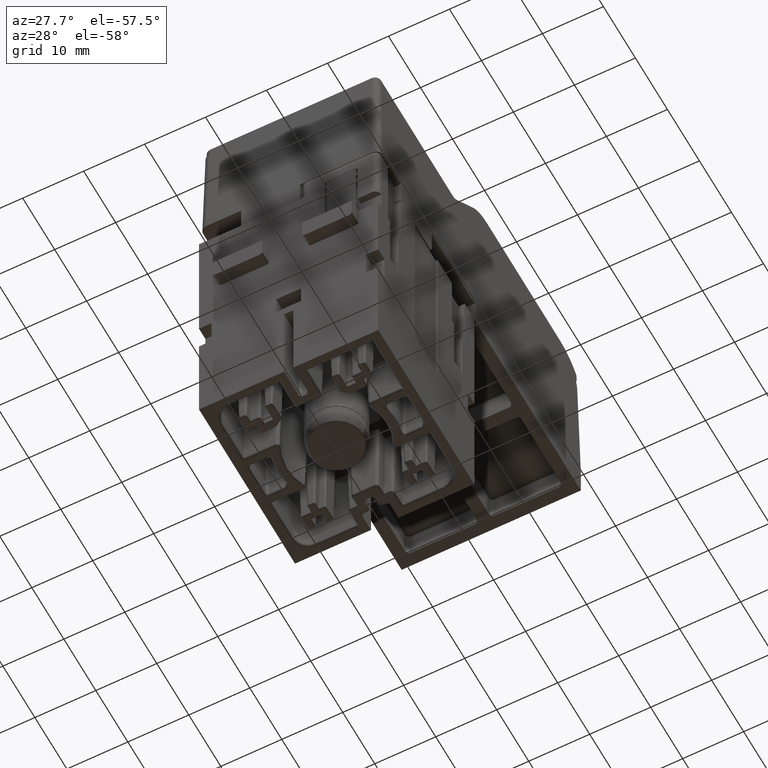
[diagram: clean part render]
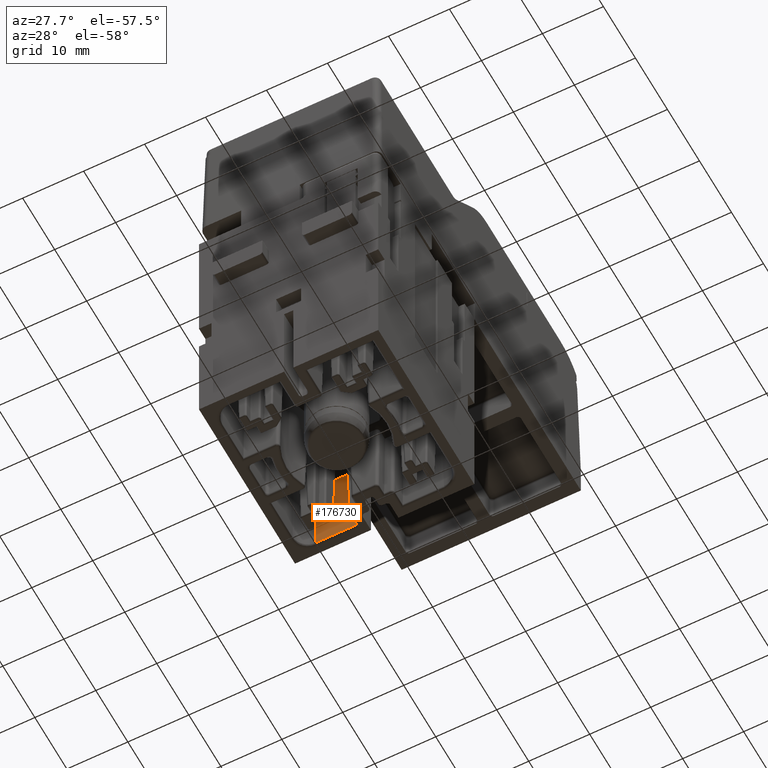
[diagram: same view with one face highlighted and labeled with its STEP entity id]
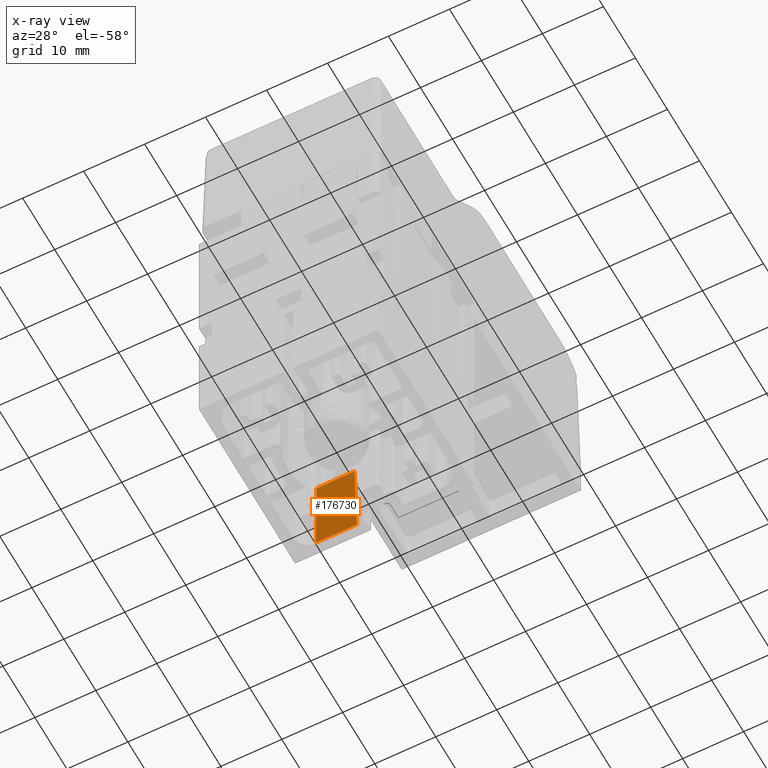
[diagram: x-ray of the same camera — body ghosted, the highlighted face saturated]
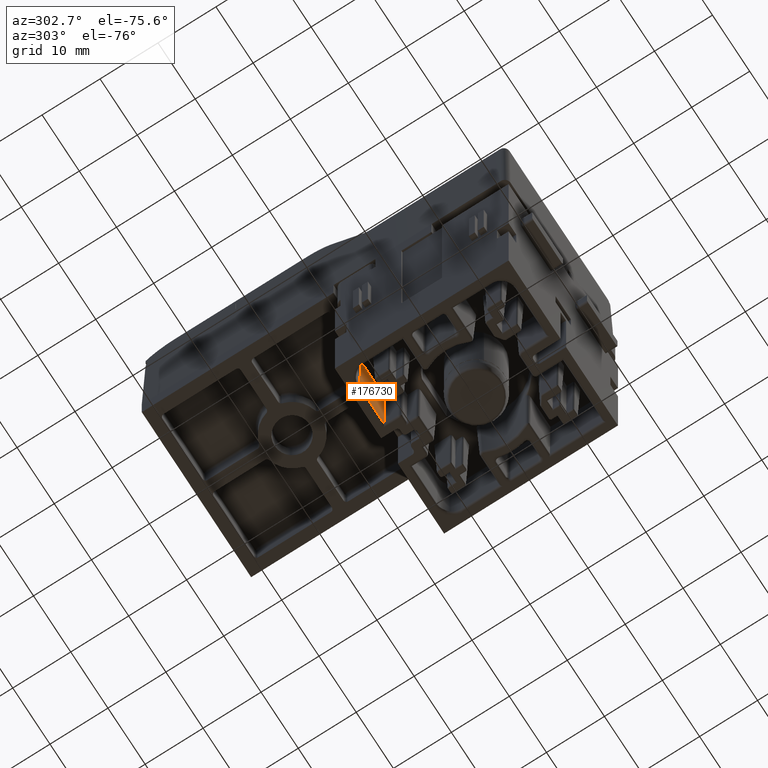
[diagram: same view with one face highlighted and labeled with its STEP entity id]
A machine part, auxiliary view. The second image highlights one B-rep face of the part: STEP entity #176730.
The next image is the same camera in x-ray: the body ghosted, the highlighted face saturated — about 0% of this face is hidden behind the body in this view.
A second angle (auxiliary view) of the same face is appended — the face is thin or edge-on in the first view.
In plain terms, the highlighted planar face has unit normal (0, 0.9998, 0.0175).
Its self-contained STEP definition (entity closure, byte-faithful):
#142210=CARTESIAN_POINT('',(51.8461300005344,44.2484567967819,
-3.50198576157503));
#142220=VERTEX_POINT('',#142210);
#142670=CARTESIAN_POINT('',(27.154278547699,44.2484567967817,
-3.50198576157505));
#142680=DIRECTION('',(-1.,-7.67670264259618E-15,-7.69482549007851E-16));
#142690=VECTOR('',#142680,1.);
#142700=LINE('',#142670,#142690);
#142710=CARTESIAN_POINT('',(45.0997207615765,44.2484567967818,
-3.50198576157504));
#142720=VERTEX_POINT('',#142710);
#142730=EDGE_CURVE('',#142220,#142720,#142700,.T.);
#151750=CARTESIAN_POINT('',(27.1542785476989,58.4571830000003,
-3.74999999999982));
#151760=DIRECTION('',(-1.,-7.67670264259618E-15,-7.69482549007851E-16));
#151770=VECTOR('',#151760,1.);
#151780=LINE('',#151750,#151770);
#152670=CARTESIAN_POINT('',(45.3477350000008,58.4571830000005,
-3.74999999999981));
#152680=VERTEX_POINT('',#152670);
#152710=CARTESIAN_POINT('',(51.5981157621099,58.4571830000005,
-3.74999999999981));
#152720=VERTEX_POINT('',#152710);
#152730=EDGE_CURVE('',#152720,#152680,#151780,.T.);
#176520=CARTESIAN_POINT('',(27.1542785476989,58.4571830000003,
-3.74999999999982));
#176530=DIRECTION('',(-9.03342287705496E-16,0.0174524064373062,
0.999847695156391));
#176540=DIRECTION('',(7.66210412140907E-15,-0.999847695156391,
0.0174524064373062));
#176550=AXIS2_PLACEMENT_3D('',#176520,#176530,#176540);
#176560=PLANE('',#176550);
#176570=ORIENTED_EDGE('',*,*,#152730,.F.);
#176580=CARTESIAN_POINT('',(45.3407529740295,58.0571829999999,
-3.7430179740285));
#176590=DIRECTION('',(-0.017449749160675,-0.999695459881887,
0.0174497491607053));
#176600=VECTOR('',#176590,1.);
#176610=LINE('',#176580,#176600);
#176620=EDGE_CURVE('',#152680,#142720,#176610,.T.);
#176630=ORIENTED_EDGE('',*,*,#176620,.F.);
#176640=ORIENTED_EDGE('',*,*,#142730,.T.);
#176650=CARTESIAN_POINT('',(51.6043362058624,58.1008140160932,
-3.74377955624729));
#176660=DIRECTION('',(0.0174497491606903,-0.999695459881887,
0.0174497491607054));
#176670=VECTOR('',#176660,1.);
#176680=LINE('',#176650,#176670);
#176690=EDGE_CURVE('',#152720,#142220,#176680,.T.);
#176700=ORIENTED_EDGE('',*,*,#176690,.T.);
#176710=EDGE_LOOP('',(#176700,#176640,#176630,#176570));
#176720=FACE_OUTER_BOUND('',#176710,.T.);
#176730=ADVANCED_FACE('',(#176720),#176560,.F.);